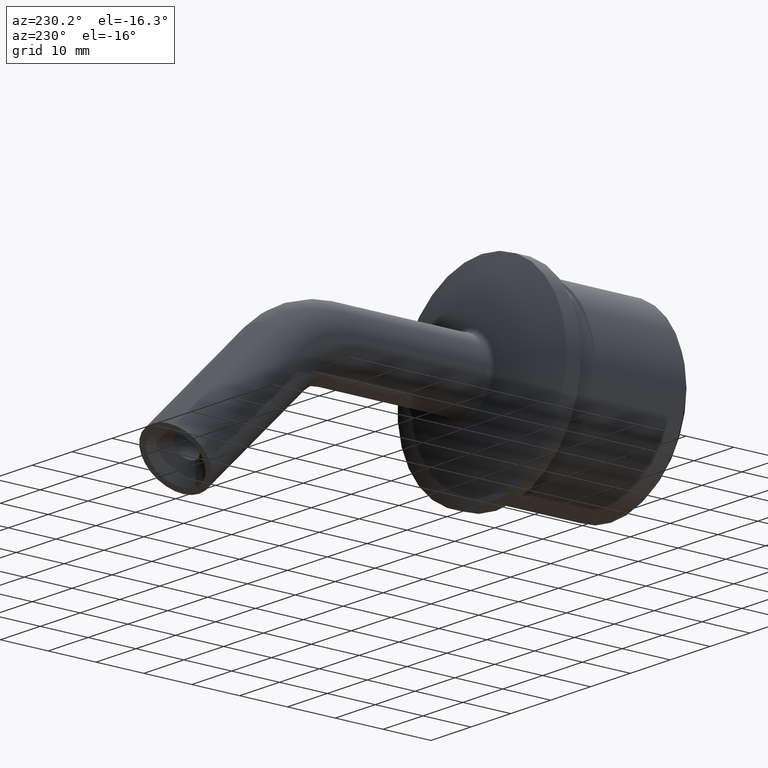
[diagram: clean part render]
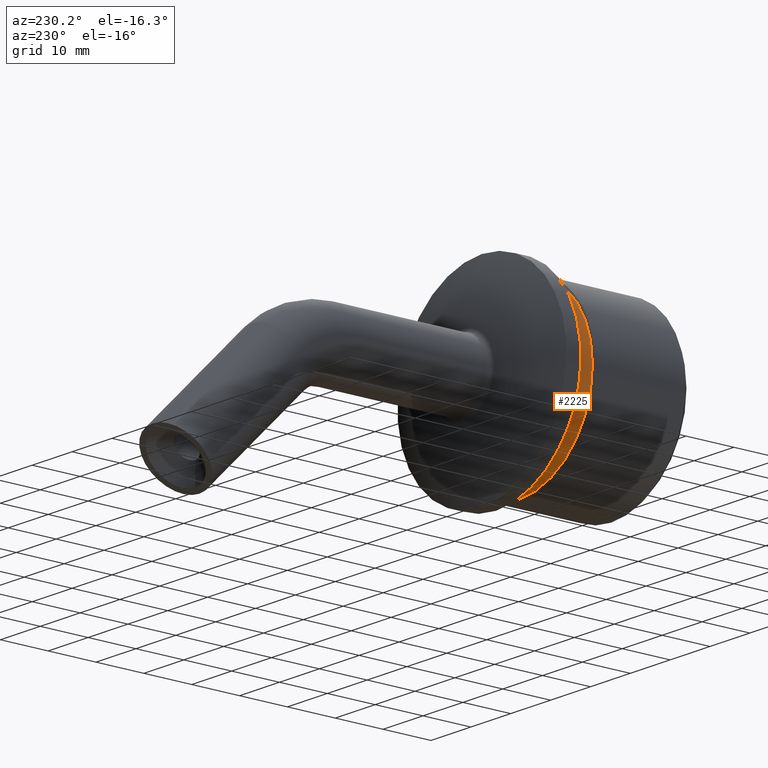
[diagram: same view with one face highlighted and labeled with its STEP entity id]
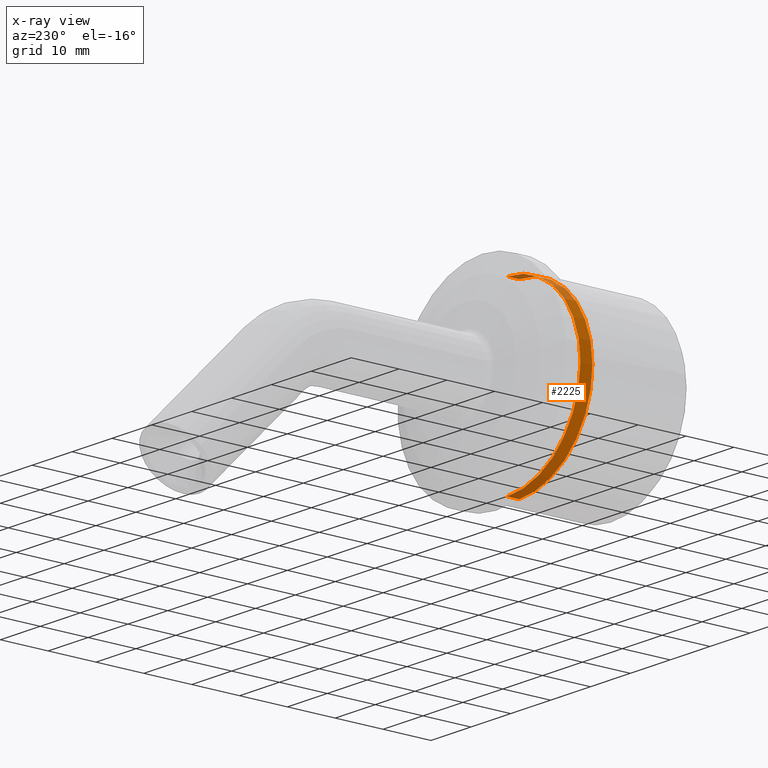
[diagram: x-ray of the same camera — body ghosted, the highlighted face saturated]
A machine part, auxiliary view. The second image highlights one B-rep face of the part: STEP entity #2225.
The next image is the same camera in x-ray: the body ghosted, the highlighted face saturated — about 2% of this face is hidden behind the body in this view.
In plain terms, the highlighted cylindrical surface (partial cylindrical patch) has radius 18.4 mm, axis along (-0, 1, -0).
Its self-contained STEP definition (entity closure, byte-faithful):
#268 = ORIENTED_EDGE ( 'NONE', *, *, #14043, .T. ) ;
#859 = EDGE_CURVE ( 'NONE', #14953, #4255, #6694, .T. ) ;
#892 = CIRCLE ( 'NONE', #9004, 18.39999999999999858 ) ;
#999 = CARTESIAN_POINT ( 'NONE',  ( 0.000000000000000000, -9.249999999999971578, 4.854849810905563633E-16 ) ) ;
#1315 = CARTESIAN_POINT ( 'NONE',  ( 0.000000000000000000, -9.249999999999969802, 18.39999999999999858 ) ) ;
#1650 = AXIS2_PLACEMENT_3D ( 'NONE', #999, #4636, #9506 ) ;
#2225 = ADVANCED_FACE ( 'NONE', ( #12938 ), #12572, .T. ) ;
#3433 = VECTOR ( 'NONE', #7094, 1000.000000000000000 ) ;
#3511 = AXIS2_PLACEMENT_3D ( 'NONE', #5188, #8718, #9346 ) ;
#3588 = CARTESIAN_POINT ( 'NONE',  ( 2.253350110431129645E-15, -11.74999999999996447, -18.39999999999999858 ) ) ;
#3643 = DIRECTION ( 'NONE',  ( 0.000000000000000000, 9.427844978134821433E-17, 1.000000000000000000 ) ) ;
#4255 = VERTEX_POINT ( 'NONE', #1315 ) ;
#4382 = LINE ( 'NONE', #15284, #6493 ) ;
#4636 = DIRECTION ( 'NONE',  ( 0.000000000000000000, -1.000000000000000000, 5.248486282060071175E-17 ) ) ;
#5092 = CARTESIAN_POINT ( 'NONE',  ( 0.000000000000000000, -11.74999999999996447, 6.166971381420579979E-16 ) ) ;
#5188 = CARTESIAN_POINT ( 'NONE',  ( 0.000000000000000000, 0.000000000000000000, 0.000000000000000000 ) ) ;
#5650 = CARTESIAN_POINT ( 'NONE',  ( 0.000000000000000000, 9.657214758990556748E-16, 18.39999999999999858 ) ) ;
#6493 = VECTOR ( 'NONE', #7977, 1000.000000000000000 ) ;
#6694 = LINE ( 'NONE', #5650, #3433 ) ;
#7094 = DIRECTION ( 'NONE',  ( -0.000000000000000000, 1.000000000000000000, -5.248486282060084733E-17 ) ) ;
#7188 = ORIENTED_EDGE ( 'NONE', *, *, #859, .T. ) ;
#7336 = DIRECTION ( 'NONE',  ( -0.000000000000000000, 1.000000000000000000, -5.248486282060091513E-17 ) ) ;
#7754 = CARTESIAN_POINT ( 'NONE',  ( 0.000000000000000000, -11.74999999999996270, 18.39999999999999858 ) ) ;
#7977 = DIRECTION ( 'NONE',  ( -0.000000000000000000, 1.000000000000000000, -5.248486282060084733E-17 ) ) ;
#8718 = DIRECTION ( 'NONE',  ( -0.000000000000000000, 1.000000000000000000, -5.248486282060084733E-17 ) ) ;
#8847 = EDGE_LOOP ( 'NONE', ( #12583, #13818, #7188, #268 ) ) ;
#9004 = AXIS2_PLACEMENT_3D ( 'NONE', #5092, #7336, #3643 ) ;
#9346 = DIRECTION ( 'NONE',  ( 0.000000000000000000, 5.248486282060085350E-17, 1.000000000000000000 ) ) ;
#9506 = DIRECTION ( 'NONE',  ( 0.000000000000000000, -9.427844978134821433E-17, -1.000000000000000000 ) ) ;
#11548 = VERTEX_POINT ( 'NONE', #3588 ) ;
#12435 = EDGE_CURVE ( 'NONE', #11548, #14953, #892, .T. ) ;
#12572 = CYLINDRICAL_SURFACE ( 'NONE', #3511, 18.39999999999999858 ) ;
#12583 = ORIENTED_EDGE ( 'NONE', *, *, #14501, .F. ) ;
#12938 = FACE_OUTER_BOUND ( 'NONE', #8847, .T. ) ;
#13135 = CIRCLE ( 'NONE', #1650, 18.39999999999999858 ) ;
#13701 = VERTEX_POINT ( 'NONE', #15651 ) ;
#13818 = ORIENTED_EDGE ( 'NONE', *, *, #12435, .T. ) ;
#14043 = EDGE_CURVE ( 'NONE', #4255, #13701, #13135, .T. ) ;
#14501 = EDGE_CURVE ( 'NONE', #11548, #13701, #4382, .T. ) ;
#14953 = VERTEX_POINT ( 'NONE', #7754 ) ;
#15284 = CARTESIAN_POINT ( 'NONE',  ( 2.253350110431129645E-15, -9.657214758990556748E-16, -18.39999999999999858 ) ) ;
#15651 = CARTESIAN_POINT ( 'NONE',  ( 2.253350110431129645E-15, -9.249999999999973355, -18.39999999999999858 ) ) ;